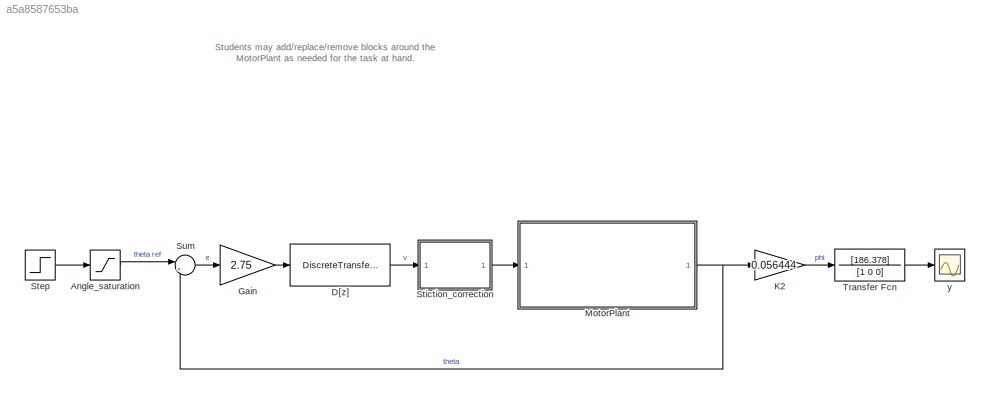
MODEL slx_a5a8587653ba
KIND model
CONFIG AbsTol = auto
CONFIG EnableMultiTasking = off
CONFIG FixedStep = 0.001
CONFIG MaxStep = auto
CONFIG MinStep = auto
CONFIG RelTol = 1e-3
CONFIG SampleTimeConstraint = Unconstrained
CONFIG Solver = FixedStepAuto
CONFIG SolverName = FixedStepAuto
CONFIG StartTime = 0.0
CONFIG StopTime = 2
BLOCK [Saturate] Angle_saturation
  InputPortMap = u0
  LowerLimit = -0.7
  Ports = [1, 1]
  UpperLimit = 0.7
BLOCK [DiscreteTransferFcn] D[z]
  Denominator = [3.08 0.08]
  InputPortMap = u0
  Numerator = [4.7 0.7]
  Ports = [1, 1]
  SampleTime = 0.03
BLOCK [Gain] Gain
  Gain = 2.75
  OutDataTypeStr = Inherit: Inherit via internal rule
  ParamDataTypeStr = Inherit: Inherit via internal rule
  SaturateOnIntegerOverflow = off
BLOCK [Gain] K2
  Gain = 0.056444
  OutDataTypeStr = Inherit: Inherit via internal rule
  ParamDataTypeStr = Inherit: Inherit via internal rule
  SaturateOnIntegerOverflow = off
BLOCK [ModelReference] MotorPlant
  CopyOfModelProtected = on
  ModelNameDialog = MotorPlant_23S
  ModelReferenceVersion = 1.41
  Ports = [1, 1]
BLOCK [Step] Step
  After = 0.7
  Before = -0.7
  SampleTime = 0
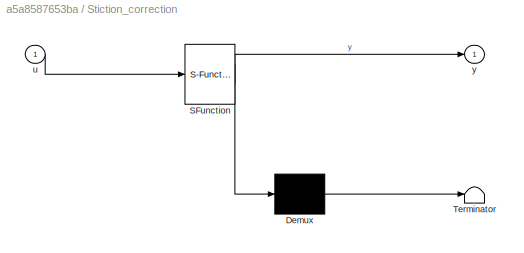
BLOCK [SubSystem] Stiction_correction
  ErrorFcn = Stateflow.Translate.translate
  PermitHierarchicalResolution = ExplicitOnly
  Ports = [1, 1]
  RequestExecContextInheritance = off
  SFBlockType = MATLAB Function
  TreatAsAtomicUnit = on
BLOCK [Demux] Stiction_correction/ Demux 
  Outputs = 1
  Ports = [1, 1]
BLOCK [S-Function] Stiction_correction/ SFunction 
  EnableBusSupport = on
  FunctionName = sf_sfun
  PortCounts = [1 2]
  Ports = [1, 2]
  SFcnIsStateOwnerBlock = off
  SFunctionDeploymentMode = off
  Tag = Stateflow S-Function 2
BLOCK [Terminator] Stiction_correction/ Terminator 
BLOCK [Inport] Stiction_correction/u
  IconDisplay = Port number
BLOCK [Outport] Stiction_correction/y
  IconDisplay = Port number
BLOCK [Sum] Sum
  IconShape = round
  InputSameDT = off
  Inputs = |+-
  OutDataTypeStr = Inherit: Inherit via internal rule
  Ports = [2, 1]
  SaturateOnIntegerOverflow = off
BLOCK [TransferFcn] Transfer Fcn
  Denominator = [1 0 0]
  Numerator = [186.378]
BLOCK [Scope] y
  Floating = off
  NumInputPorts = 1
  Ports = [1]
  ScopeSpecificationString = Simulink.scopes.TimeScopeBlockCfg('CurrentConfiguration', extmgr.ConfigurationSet(extmgr.Configuration('Core','General UI',true),extmgr.Configuration('Core','Source UI',true),extmgr.Configuration('Sources','WiredSimulink',true,'DataLoggingVariableName','theta','DataLogging',true,'DataLoggingSaveFormat','Array'),extmgr.Configuration('Visuals','Time Domain',true,'SerializedDisplays',{struct('MinYLim...<+1449ch>
ANNOTATION (root): Students may add/replace/remove blocks around the MotorPlant as needed for the task at hand.
LINE Angle_saturation:1 -> Sum:1
LINE D[z]:1 -> Stiction_correction:1
LINE Gain:1 -> D[z]:1
LINE K2:1 -> Transfer Fcn:1
NET MotorPlant:1 -> K2:1, Sum:2
LINE Step:1 -> Angle_saturation:1
LINE Stiction_correction:1 -> MotorPlant:1
LINE Sum:1 -> Gain:1
LINE Transfer Fcn:1 -> y:1
note: NET lines group one-source signal fan-out (src -> all destinations, sorted); 1:1 wires keep LINE
CHART Stiction_correction states=1 transitions=1
  STATE_LABEL 'eML_blk_kernel()'
  STATE_LABEL 'SCRIPT:\nfunction y = fcn(u)\n\na = -0.48;\nb = 0.50;\n\nif u < b && u > 0\n    y = u + b;\nelseif u > a && u < 0\n    y = u + a;\nelse\n    y = u;\n\nend\n'
